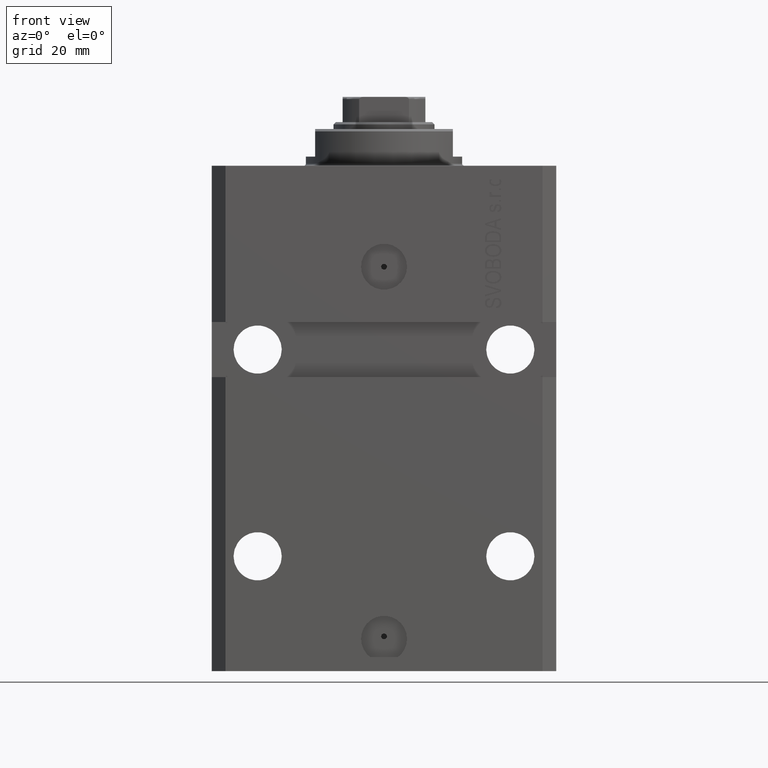
[diagram: clean part render]
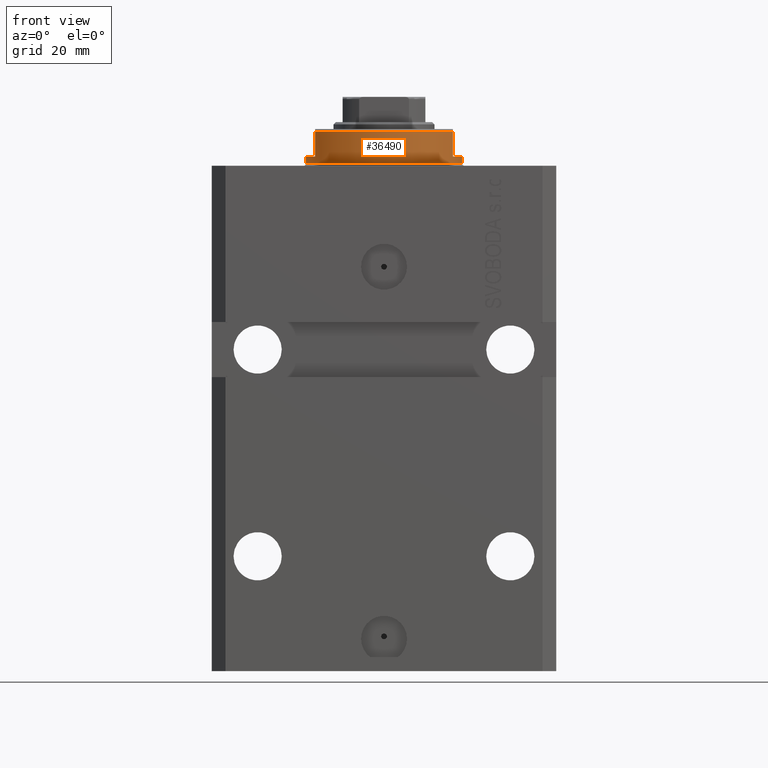
[diagram: same view with one face highlighted and labeled with its STEP entity id]
A machine part, front view. The second image highlights one B-rep face of the part: STEP entity #36490.
In plain terms, the highlighted cylindrical surface (partial cylindrical patch) has radius 17 mm, axis along (0, 0, -1).
Its self-contained STEP definition (entity closure, byte-faithful):
#1777 = CARTESIAN_POINT ( 'NONE',  ( 17.00000000000000000, 0.000000000000000000, -8.000000000000000000 ) ) ;
#2581 = CARTESIAN_POINT ( 'NONE',  ( 0.000000000000000000, 0.000000000000000000, -2.000000000000000000 ) ) ;
#3547 = LINE ( 'NONE', #46654, #32175 ) ;
#3950 = DIRECTION ( 'NONE',  ( -0.000000000000000000, -0.000000000000000000, 1.000000000000000000 ) ) ;
#4578 = CARTESIAN_POINT ( 'NONE',  ( 17.00000000000000000, 0.000000000000000000, -0.5000000000000004441 ) ) ;
#5028 = CIRCLE ( 'NONE', #31767, 17.00000000000000000 ) ;
#5328 = ORIENTED_EDGE ( 'NONE', *, *, #7910, .F. ) ;
#7910 = EDGE_CURVE ( 'NONE', #14168, #18335, #36351, .T. ) ;
#8179 = DIRECTION ( 'NONE',  ( 0.000000000000000000, 0.000000000000000000, 1.000000000000000000 ) ) ;
#8588 = VECTOR ( 'NONE', #23803, 1000.000000000000000 ) ;
#10463 = CARTESIAN_POINT ( 'NONE',  ( 0.000000000000000000, 0.000000000000000000, -8.000000000000000000 ) ) ;
#10514 = CARTESIAN_POINT ( 'NONE',  ( 15.00000000000000000, -8.000000000000001776, -8.000000000000000000 ) ) ;
#12053 = AXIS2_PLACEMENT_3D ( 'NONE', #29484, #8179, #18960 ) ;
#12552 = DIRECTION ( 'NONE',  ( 1.000000000000000000, 0.000000000000000000, 0.000000000000000000 ) ) ;
#12891 = CIRCLE ( 'NONE', #33463, 17.00000000000000000 ) ;
#13022 = EDGE_CURVE ( 'NONE', #20496, #18496, #3547, .T. ) ;
#13660 = VECTOR ( 'NONE', #43783, 1000.000000000000000 ) ;
#14046 = CYLINDRICAL_SURFACE ( 'NONE', #29894, 17.00000000000000000 ) ;
#14168 = VERTEX_POINT ( 'NONE', #44895 ) ;
#15645 = EDGE_CURVE ( 'NONE', #21842, #22128, #38861, .T. ) ;
#16473 = EDGE_CURVE ( 'NONE', #20819, #39101, #25491, .T. ) ;
#17050 = ORIENTED_EDGE ( 'NONE', *, *, #22719, .F. ) ;
#18335 = VERTEX_POINT ( 'NONE', #35684 ) ;
#18496 = VERTEX_POINT ( 'NONE', #39460 ) ;
#18960 = DIRECTION ( 'NONE',  ( -1.000000000000000000, 0.000000000000000000, 0.000000000000000000 ) ) ;
#20150 = ORIENTED_EDGE ( 'NONE', *, *, #31623, .T. ) ;
#20361 = CARTESIAN_POINT ( 'NONE',  ( -17.00000000000000000, 2.081899558550500280E-15, -0.5000000000000004441 ) ) ;
#20496 = VERTEX_POINT ( 'NONE', #34833 ) ;
#20819 = VERTEX_POINT ( 'NONE', #26636 ) ;
#21259 = EDGE_LOOP ( 'NONE', ( #39139, #36620, #33118, #20150, #5328, #17050, #35534, #37007 ) ) ;
#21281 = AXIS2_PLACEMENT_3D ( 'NONE', #23094, #27396, #12552 ) ;
#21669 = CARTESIAN_POINT ( 'NONE',  ( -17.00000000000000000, 2.081899558550500280E-15, -8.000000000000000000 ) ) ;
#21708 = DIRECTION ( 'NONE',  ( -0.000000000000000000, -0.000000000000000000, 1.000000000000000000 ) ) ;
#21842 = VERTEX_POINT ( 'NONE', #43897 ) ;
#22128 = VERTEX_POINT ( 'NONE', #4578 ) ;
#22719 = EDGE_CURVE ( 'NONE', #21842, #14168, #5028, .T. ) ;
#23094 = CARTESIAN_POINT ( 'NONE',  ( 0.000000000000000000, 0.000000000000000000, -0.5000000000000004441 ) ) ;
#23803 = DIRECTION ( 'NONE',  ( -0.000000000000000000, -0.000000000000000000, 1.000000000000000000 ) ) ;
#24598 = DIRECTION ( 'NONE',  ( 0.000000000000000000, 0.000000000000000000, -1.000000000000000000 ) ) ;
#25491 = LINE ( 'NONE', #21669, #34628 ) ;
#26636 = CARTESIAN_POINT ( 'NONE',  ( -17.00000000000000000, 2.081899558550500280E-15, -2.000000000000000000 ) ) ;
#27396 = DIRECTION ( 'NONE',  ( -0.000000000000000000, -0.000000000000000000, -1.000000000000000000 ) ) ;
#29484 = CARTESIAN_POINT ( 'NONE',  ( 0.000000000000000000, 0.000000000000000000, -7.500000000000007105 ) ) ;
#29894 = AXIS2_PLACEMENT_3D ( 'NONE', #10463, #21708, #36296 ) ;
#31623 = EDGE_CURVE ( 'NONE', #18496, #18335, #41909, .T. ) ;
#31767 = AXIS2_PLACEMENT_3D ( 'NONE', #2581, #24598, #46846 ) ;
#32175 = VECTOR ( 'NONE', #39222, 1000.000000000000000 ) ;
#33048 = EDGE_CURVE ( 'NONE', #20496, #20819, #12891, .T. ) ;
#33118 = ORIENTED_EDGE ( 'NONE', *, *, #13022, .T. ) ;
#33463 = AXIS2_PLACEMENT_3D ( 'NONE', #45050, #40502, #37846 ) ;
#34628 = VECTOR ( 'NONE', #3950, 1000.000000000000000 ) ;
#34833 = CARTESIAN_POINT ( 'NONE',  ( -14.99999999999999645, -8.000000000000003553, -2.000000000000000000 ) ) ;
#35534 = ORIENTED_EDGE ( 'NONE', *, *, #15645, .T. ) ;
#35684 = CARTESIAN_POINT ( 'NONE',  ( 15.00000000000000000, -8.000000000000001776, -7.500000000000007105 ) ) ;
#36296 = DIRECTION ( 'NONE',  ( 1.000000000000000000, 0.000000000000000000, 0.000000000000000000 ) ) ;
#36351 = LINE ( 'NONE', #10514, #13660 ) ;
#36490 = ADVANCED_FACE ( 'NONE', ( #37005 ), #14046, .T. ) ;
#36620 = ORIENTED_EDGE ( 'NONE', *, *, #33048, .F. ) ;
#37005 = FACE_OUTER_BOUND ( 'NONE', #21259, .T. ) ;
#37007 = ORIENTED_EDGE ( 'NONE', *, *, #45105, .T. ) ;
#37846 = DIRECTION ( 'NONE',  ( -1.000000000000000000, 0.000000000000000000, 0.000000000000000000 ) ) ;
#38861 = LINE ( 'NONE', #1777, #8588 ) ;
#39101 = VERTEX_POINT ( 'NONE', #20361 ) ;
#39139 = ORIENTED_EDGE ( 'NONE', *, *, #16473, .F. ) ;
#39222 = DIRECTION ( 'NONE',  ( 0.000000000000000000, 0.000000000000000000, -1.000000000000000000 ) ) ;
#39460 = CARTESIAN_POINT ( 'NONE',  ( -15.00000000000000000, -8.000000000000001776, -7.500000000000007105 ) ) ;
#40502 = DIRECTION ( 'NONE',  ( 0.000000000000000000, 0.000000000000000000, -1.000000000000000000 ) ) ;
#41909 = CIRCLE ( 'NONE', #12053, 17.00000000000000000 ) ;
#43783 = DIRECTION ( 'NONE',  ( 0.000000000000000000, 0.000000000000000000, -1.000000000000000000 ) ) ;
#43897 = CARTESIAN_POINT ( 'NONE',  ( 17.00000000000000000, 0.000000000000000000, -2.000000000000000000 ) ) ;
#44244 = CIRCLE ( 'NONE', #21281, 17.00000000000000000 ) ;
#44895 = CARTESIAN_POINT ( 'NONE',  ( 14.99999999999999645, -8.000000000000003553, -2.000000000000000000 ) ) ;
#45050 = CARTESIAN_POINT ( 'NONE',  ( 0.000000000000000000, 0.000000000000000000, -2.000000000000000000 ) ) ;
#45105 = EDGE_CURVE ( 'NONE', #22128, #39101, #44244, .T. ) ;
#46654 = CARTESIAN_POINT ( 'NONE',  ( -15.00000000000000000, -8.000000000000001776, -8.000000000000000000 ) ) ;
#46846 = DIRECTION ( 'NONE',  ( -1.000000000000000000, 0.000000000000000000, 0.000000000000000000 ) ) ;